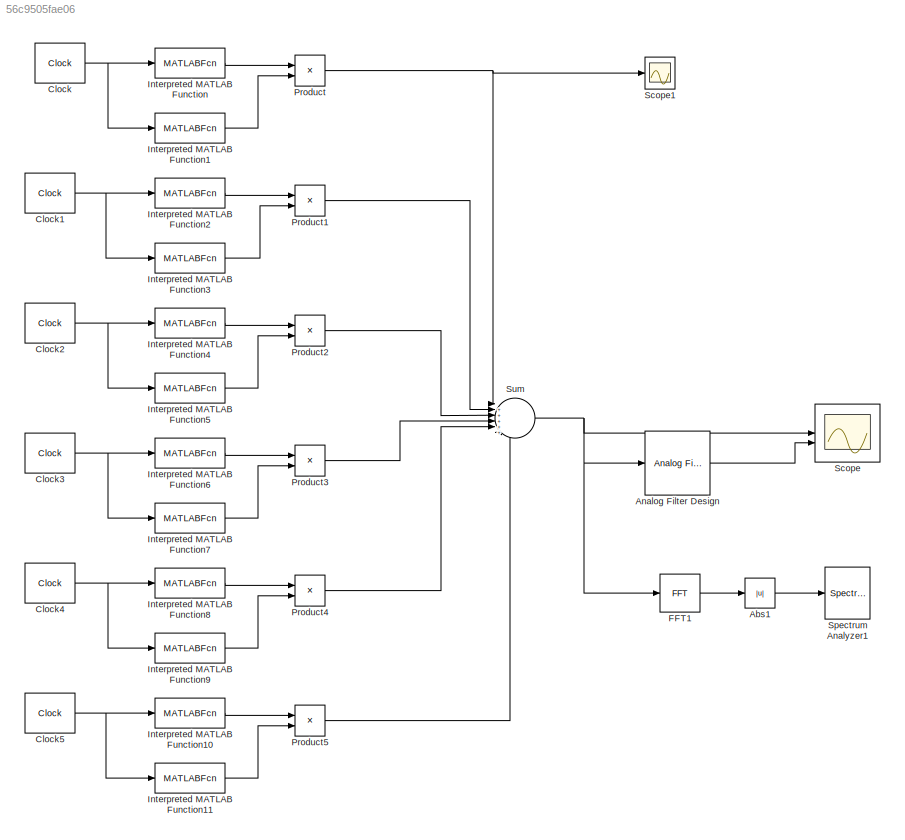
MODEL slx_56c9505fae06
KIND model
CONFIG AbsTol = auto
CONFIG EnableMultiTasking = off
CONFIG FixedStep = pi/1500
CONFIG MaxStep = auto
CONFIG MinStep = auto
CONFIG RelTol = 1e-3
CONFIG SampleTimeConstraint = Unconstrained
CONFIG SolverName = FixedStepAuto
CONFIG StartTime = -2*pi
CONFIG StopTime = 2*pi
BLOCK [Abs] Abs1
  SaturateOnIntegerOverflow = off
BLOCK [Reference] Analog Filter Design  REF=dspfdesign/Analog
Filter Design
  SourceBlock = dspfdesign/Analog\nFilter Design
  SourceType = Analog Filter Design
BLOCK [Clock] Clock
BLOCK [Clock] Clock1
BLOCK [Clock] Clock2
BLOCK [Clock] Clock3
BLOCK [Clock] Clock4
BLOCK [Clock] Clock5
BLOCK [Reference] FFT1  REF=dspxfrm3/FFT
  SourceBlock = dspxfrm3/FFT
  SourceType = FFT
BLOCK [MATLABFcn] Interpreted MATLAB Function
  MATLABFcn = 4*sinc(u*100)
BLOCK [MATLABFcn] Interpreted MATLAB Function1
  MATLABFcn = cos(pi*u*100)/(1-(4*u.^2*10000))
BLOCK [MATLABFcn] Interpreted MATLAB Function10
  MATLABFcn = -4*sinc((u-0.05)*100)
BLOCK [MATLABFcn] Interpreted MATLAB Function11
  MATLABFcn = cos(pi*(u-0.05)*100)/(1-(4*(u-0.05).^2*10000))
BLOCK [MATLABFcn] Interpreted MATLAB Function2
  MATLABFcn = 2*sinc((u-0.01)*100)
BLOCK [MATLABFcn] Interpreted MATLAB Function3
  MATLABFcn = cos(pi*(u-0.01)*100)/(1-(4*(u-0.01).^2*10000))
BLOCK [MATLABFcn] Interpreted MATLAB Function4
  MATLABFcn = -1*sinc((u-0.02)*100)
BLOCK [MATLABFcn] Interpreted MATLAB Function5
  MATLABFcn = cos(pi*(u-0.02)*100)/(1-(4*(u-0.02).^2*10000))
BLOCK [MATLABFcn] Interpreted MATLAB Function6
  MATLABFcn = -3*sinc((u-0.03)*100)
BLOCK [MATLABFcn] Interpreted MATLAB Function7
  MATLABFcn = cos(pi*(u-0.03)*100)/(1-(4*(u-0.03).^2*10000))
BLOCK [MATLABFcn] Interpreted MATLAB Function8
  MATLABFcn = 2*sinc((u-0.04)*100)
BLOCK [MATLABFcn] Interpreted MATLAB Function9
  MATLABFcn = cos(pi*(u-0.04)*100)/(1-(4*(u-0.04).^2*10000))
BLOCK [Product] Product
BLOCK [Product] Product1
BLOCK [Product] Product2
BLOCK [Product] Product3
BLOCK [Product] Product4
BLOCK [Product] Product5
BLOCK [Scope] Scope
  Floating = off
  NumInputPorts = 2
  ScopeSpecificationString = Simulink.scopes.TimeScopeBlockCfg('CurrentConfiguration', extmgr.ConfigurationSet(extmgr.Configuration('Core','General UI',true),extmgr.Configuration('Core','Source UI',true),extmgr.Configuration('Sources','WiredSimulink',true),extmgr.Configuration('Visuals','Time Domain',true,'SerializedDisplays',{struct('MinYLimReal','-4.00638','MaxYLimReal','3.93401','YLabelReal','','MinYLimMag','0.00000','MaxY...<+1990ch>
BLOCK [Scope] Scope1
  Floating = off
  NumInputPorts = 1
  ScopeSpecificationString = Simulink.scopes.TimeScopeBlockCfg('CurrentConfiguration', extmgr.ConfigurationSet(extmgr.Configuration('Core','General UI',true),extmgr.Configuration('Core','Source UI',true),extmgr.Configuration('Sources','WiredSimulink',true,'DataLoggingVariableName','ScopeData1'),extmgr.Configuration('Visuals','Time Domain',true,'SerializedDisplays',{struct('MinYLimReal','-0.09521','MaxYLimReal','4.00000','YLab...<+1469ch>
BLOCK [SpectrumAnalyzer] Spectrum Analyzer1
  AveragingMethod = Exponential
  AxesScaling = Manual
  DefaultConfigurationName = spbscopes.SpectrumAnalyzerBlockCfg
  FrequencyInputRBWFromPort = 0
  FrequencyInputRBWPort = 0
  FrequencyVectorFromPort = 0
  FrequencyVectorPort = 0
  GraphicalSettings = {"GraphicalSettings":{"SpectralMask":{"CustomReferenceLevel":"0","EnabledMasks":"None","LowerMask":"-Inf","MaskFrequencyOffset":"0","ReferenceLevel":"Custom","SelectedChannel":"1","UpperMask":"Inf"},"Style":{"AxesColor":"[0 0 0]","DisplayName":"","LabelsColor":"[0.686274509803922 0.686274509803922 0.686274509803922]","LineStyle":"-","LineWidth":"0.5","Marker":"none","MarkerEdgeColor":"auto","Marke...<+117ch>
  IsFrequencyInputMode = 0
  SampleRate = 477.464829275686
  ScopeFrameLocation = window
  ScopeSpecificationString = spbscopes.SpectrumAnalyzerBlockCfg('CurrentConfiguration', extmgr.ConfigurationSet(extmgr.Configuration('Core','General UI',true),extmgr.Configuration('Core','Source UI',true),extmgr.Configuration('Sources','WiredSimulink',true),extmgr.Configuration('Visuals','Spectrum',true,'AxesProperties',struct('Color',{[0 0 0],[0 0 0]},'XColor',{[0.686274509803922 0.686274509803922 0.686274509803922],[0.68627...<+1949ch>
  Span = 477.464829275686
  StartFrequency = -238.732414637843
  StopFrequency = 238.732414637843
  Visible = on
  WasSavedAsWebScope = on
  WindowPosition = [2882.000000,542.000000,958.000000,508.000000,]
  YLimits = [-150.1392740907762402,-32.951899435865726673]
BLOCK [Sum] Sum
  Inputs = |++++++
LINE Abs1:1 -> Spectrum Analyzer1:1
LINE Analog Filter Design:1 -> Scope:2
NET Clock1:1 -> Interpreted MATLAB Function2:1, Interpreted MATLAB Function3:1
NET Clock2:1 -> Interpreted MATLAB Function4:1, Interpreted MATLAB Function5:1
NET Clock3:1 -> Interpreted MATLAB Function6:1, Interpreted MATLAB Function7:1
NET Clock4:1 -> Interpreted MATLAB Function8:1, Interpreted MATLAB Function9:1
NET Clock5:1 -> Interpreted MATLAB Function10:1, Interpreted MATLAB Function11:1
NET Clock:1 -> Interpreted MATLAB Function1:1, Interpreted MATLAB Function:1
LINE FFT1:1 -> Abs1:1
LINE Interpreted MATLAB Function10:1 -> Product5:1
LINE Interpreted MATLAB Function11:1 -> Product5:2
LINE Interpreted MATLAB Function1:1 -> Product:2
LINE Interpreted MATLAB Function2:1 -> Product1:1
LINE Interpreted MATLAB Function3:1 -> Product1:2
LINE Interpreted MATLAB Function4:1 -> Product2:1
LINE Interpreted MATLAB Function5:1 -> Product2:2
LINE Interpreted MATLAB Function6:1 -> Product3:1
LINE Interpreted MATLAB Function7:1 -> Product3:2
LINE Interpreted MATLAB Function8:1 -> Product4:1
LINE Interpreted MATLAB Function9:1 -> Product4:2
LINE Interpreted MATLAB Function:1 -> Product:1
LINE Product1:1 -> Sum:2
LINE Product2:1 -> Sum:3
LINE Product3:1 -> Sum:4
LINE Product4:1 -> Sum:5
LINE Product5:1 -> Sum:6
NET Product:1 -> Scope1:1, Sum:1
NET Sum:1 -> Analog Filter Design:1, FFT1:1, Scope:1
note: NET lines group one-source signal fan-out (src -> all destinations, sorted); 1:1 wires keep LINE
